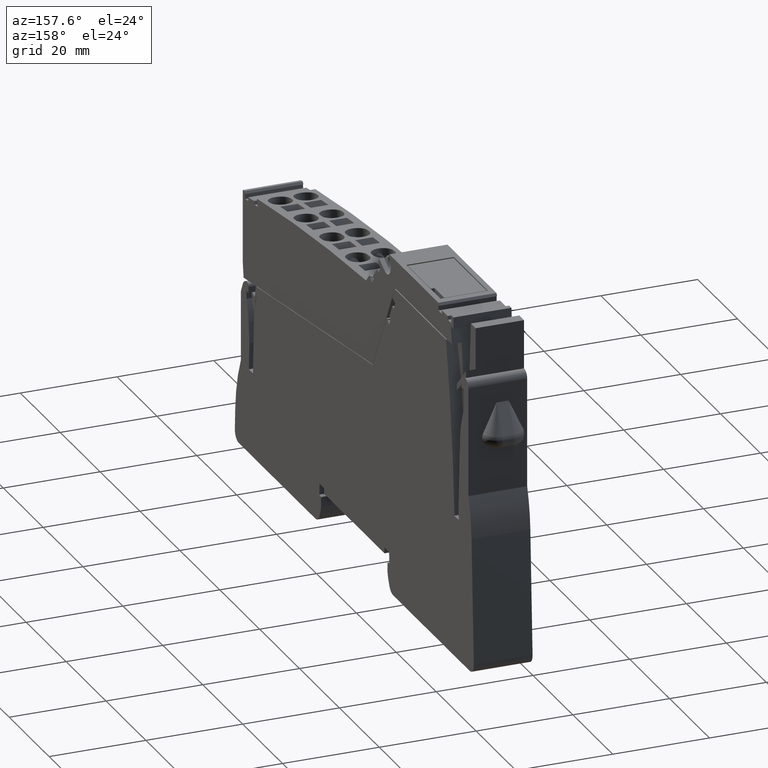
[diagram: clean part render]
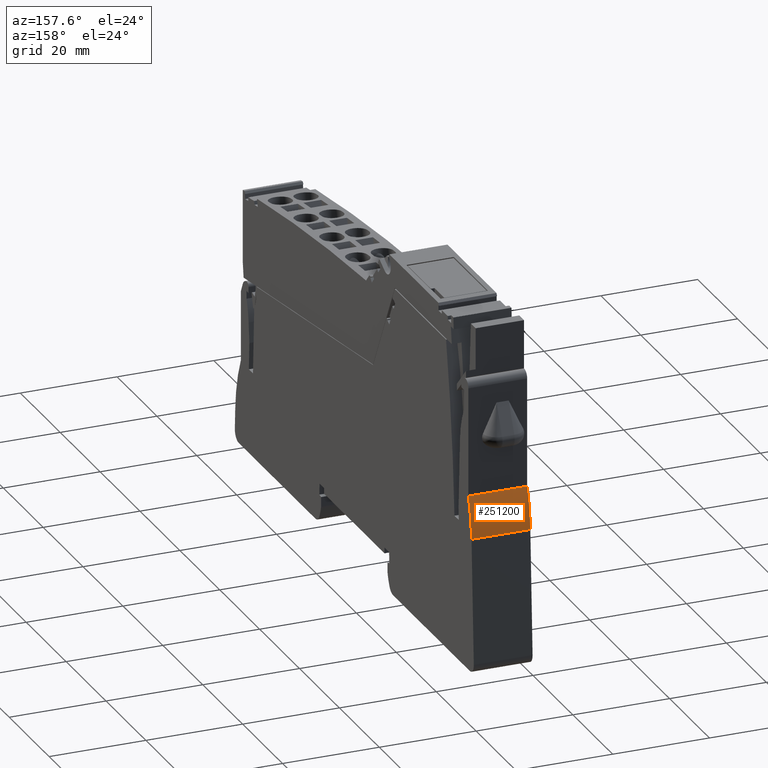
[diagram: same view with one face highlighted and labeled with its STEP entity id]
A machine part, auxiliary view. The second image highlights one B-rep face of the part: STEP entity #251200.
In plain terms, the highlighted cylindrical surface (partial cylindrical patch) has radius 30 mm, axis along (1, 0, 0).
Its self-contained STEP definition (entity closure, byte-faithful):
#176060=CARTESIAN_POINT('',(293.728620208859,-26.6633289582232,36.45));
#176070=VERTEX_POINT('',#176060);
#176100=CARTESIAN_POINT('',(265.338905386229,-36.3599310584282,36.45));
#176110=DIRECTION('',(0.,1.19110369467609E-44,1.));
#176120=DIRECTION('',(1.,0.,0.));
#176130=AXIS2_PLACEMENT_3D('',#176100,#176110,#176120);
#176140=CIRCLE('',#176130,29.9999999999995);
#176150=CARTESIAN_POINT('',(295.310352033684,-35.0513494374681,36.45));
#176160=VERTEX_POINT('',#176150);
#176170=EDGE_CURVE('',#176160,#176070,#176140,.T.);
#179710=CARTESIAN_POINT('',(295.310352033684,-35.0513494374681,24.3));
#179720=VERTEX_POINT('',#179710);
#179750=CARTESIAN_POINT('',(265.338905386229,-36.3599310584282,24.3));
#179760=DIRECTION('',(0.,1.19110369467609E-44,1.));
#179770=DIRECTION('',(1.,0.,0.));
#179780=AXIS2_PLACEMENT_3D('',#179750,#179760,#179770);
#179790=CIRCLE('',#179780,29.9999999999995);
#179800=CARTESIAN_POINT('',(293.728620208859,-26.6633289582232,24.3));
#179810=VERTEX_POINT('',#179800);
#179820=EDGE_CURVE('',#179720,#179810,#179790,.T.);
#185440=CARTESIAN_POINT('',(295.310352033684,-35.0513494374681,24.3));
#185450=DIRECTION('',(0.,1.19110369467609E-44,1.));
#185460=VECTOR('',#185450,1.);
#185470=LINE('',#185440,#185460);
#185480=EDGE_CURVE('',#179720,#176160,#185470,.T.);
#251040=CARTESIAN_POINT('',(265.338905386229,-36.3599310584282,24.3));
#251050=DIRECTION('',(0.,1.19110369467609E-44,1.));
#251060=DIRECTION('',(1.,0.,0.));
#251070=AXIS2_PLACEMENT_3D('',#251040,#251050,#251060);
#251080=CYLINDRICAL_SURFACE('',#251070,29.9999999999995);
#251090=CARTESIAN_POINT('',(293.728620208859,-26.6633289582232,24.3));
#251100=DIRECTION('',(0.,1.19110369467609E-44,1.));
#251110=VECTOR('',#251100,1.);
#251120=LINE('',#251090,#251110);
#251130=EDGE_CURVE('',#179810,#176070,#251120,.T.);
#251140=ORIENTED_EDGE('',*,*,#251130,.T.);
#251150=ORIENTED_EDGE('',*,*,#179820,.T.);
#251160=ORIENTED_EDGE('',*,*,#185480,.F.);
#251170=ORIENTED_EDGE('',*,*,#176170,.F.);
#251180=EDGE_LOOP('',(#251170,#251160,#251150,#251140));
#251190=FACE_OUTER_BOUND('',#251180,.T.);
#251200=ADVANCED_FACE('',(#251190),#251080,.T.);